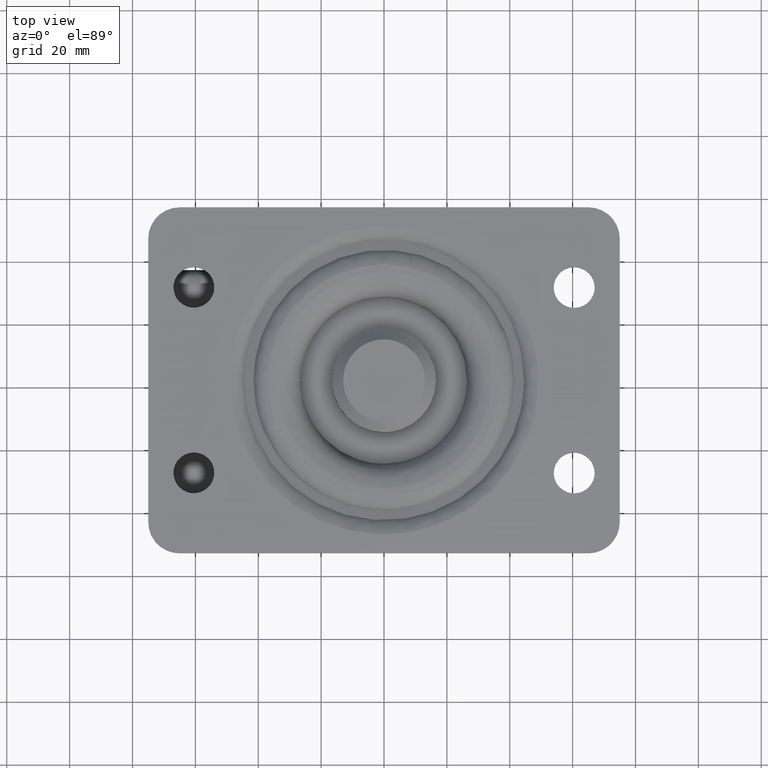
[diagram: clean part render]
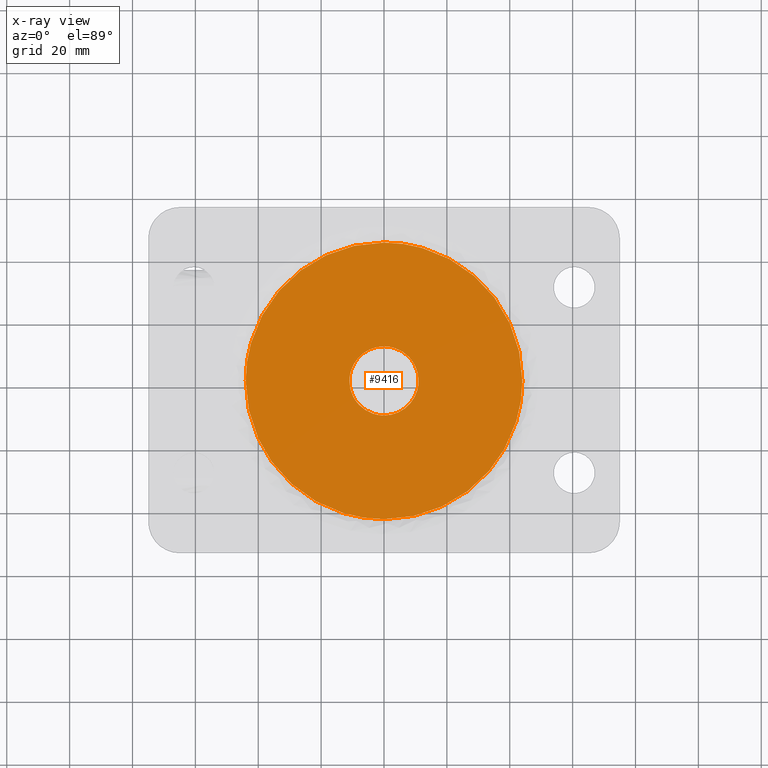
[diagram: x-ray — body ghosted, one internal face saturated and labeled with its STEP entity id]
A machine part, top view, then the same camera in x-ray: the body is ghosted and one INTERNAL B-rep face — a face not visible from any outside direction — is saturated and labeled: STEP entity #9416.
In plain terms, the highlighted face is a freeform B-spline surface patch.
Its self-contained STEP definition (entity closure, byte-faithful):
#9091=CARTESIAN_POINT('',(-44.000000006474920,-3.540981E-015,-14.300000000000001));
#9092=VERTEX_POINT('',#9091);
#9105=CARTESIAN_POINT('',(-0.000003288799408,43.999999999999879,-14.300000000000001));
#9106=VERTEX_POINT('',#9105);
#9107=CARTESIAN_POINT('',(-0.000003288799408,43.999999999999879,-14.300000000000001));
#9108=CARTESIAN_POINT('',(-2.879818366784983,44.000351013822161,-14.300000000000020));
#9109=CARTESIAN_POINT('',(-7.649328807625619,43.530022880303640,-14.299999999999971));
#9110=CARTESIAN_POINT('',(-13.487107773322890,41.972027704614248,-14.300000000000059));
#9111=CARTESIAN_POINT('',(-17.941275789975091,40.253845468189802,-14.299999999999930));
#9112=CARTESIAN_POINT('',(-22.288704957403908,38.065627396264532,-14.300000000000161));
#9113=CARTESIAN_POINT('',(-26.938544867940749,34.958720271804779,-14.300000000000029));
#9114=CARTESIAN_POINT('',(-31.263071502610220,31.134763783527731,-14.299999999999701));
#9115=CARTESIAN_POINT('',(-34.940274503055448,26.924360374566220,-14.300000000000210));
#9116=CARTESIAN_POINT('',(-38.327296430906543,21.922229891631570,-14.299999999999971));
#9117=CARTESIAN_POINT('',(-40.925027349809817,16.558189556523828,-14.300000000000191));
#9118=CARTESIAN_POINT('',(-42.629117777103552,11.235197813998910,-14.299999999999910));
#9119=CARTESIAN_POINT('',(-43.716334771194802,5.939529568551540,-14.300000000000050));
#9120=CARTESIAN_POINT('',(-44.000151555222629,2.249848368880807,-14.299999999999979));
#9121=CARTESIAN_POINT('',(-44.000000006474920,-3.540981E-015,-14.300000000000001));
#9122=B_SPLINE_CURVE_WITH_KNOTS('',3,(#9107,#9108,#9109,#9110,#9111,#9112,#9113,#9114,#9115,#9116,#9117,#9118,#9119,#9120,#9121),.UNSPECIFIED.,.F.,.U.,(4,1,1,1,1,1,1,1,1,1,1,1,4),(0.000000080761367,8.639379993254337,14.308982956856941,18.088730011883950,22.948412067883421,28.887981037103941,34.827504618990467,40.227169867078487,45.626788852177462,52.916283563841603,58.045928613464362,62.365621627352262,69.115144953306867),.UNSPECIFIED.);
#9123=EDGE_CURVE('',#9106,#9092,#9122,.T.);
#9125=CARTESIAN_POINT('',(44.000000006474913,1.541728E-015,-14.300000000000001));
#9126=VERTEX_POINT('',#9125);
#9127=CARTESIAN_POINT('',(44.000000006474913,1.541728E-015,-14.300000000000001));
#9128=CARTESIAN_POINT('',(44.000406653466392,2.879826673292151,-14.300000000000001));
#9129=CARTESIAN_POINT('',(43.565441640034940,7.289337304598183,-14.300000000000010));
#9130=CARTESIAN_POINT('',(42.080326166805037,13.141632755913291,-14.300000000000020));
#9131=CARTESIAN_POINT('',(40.541569967309762,17.281314259673710,-14.299999999999899));
#9132=CARTESIAN_POINT('',(38.487087978484993,21.490712016686341,-14.300000000000050));
#9133=CARTESIAN_POINT('',(35.859853719377448,25.696561200241529,-14.299999999999971));
#9134=CARTESIAN_POINT('',(32.212119775735950,30.169246060561111,-14.300000000000070));
#9135=CARTESIAN_POINT('',(28.257545734327842,33.865507338010651,-14.300000000000059));
#9136=CARTESIAN_POINT('',(23.895610002559099,37.059182666323188,-14.299999999999860));
#9137=CARTESIAN_POINT('',(19.195952135444742,39.740658291535809,-14.300000000000360));
#9138=CARTESIAN_POINT('',(13.339449201616860,42.103703533738518,-14.299999999999891));
#9139=CARTESIAN_POINT('',(6.839477329071829,43.647257050551559,-14.300000000000059));
#9140=CARTESIAN_POINT('',(2.249839491382803,44.000122834062410,-14.300000000000001));
#9141=CARTESIAN_POINT('',(-0.000003288799408,43.999999999999879,-14.300000000000001));
#9142=B_SPLINE_CURVE_WITH_KNOTS('',3,(#9127,#9128,#9129,#9130,#9131,#9132,#9133,#9134,#9135,#9136,#9137,#9138,#9139,#9140,#9141),.UNSPECIFIED.,.F.,.U.,(4,1,1,1,1,1,1,1,1,1,1,1,4),(0.000000080474123,8.639380456203597,13.229055354062391,18.088730981881049,21.868484835617121,27.268127180695739,32.937747772707432,39.147243824423512,43.466945728921132,49.136539575548987,55.346129289589364,62.365624971714020,69.115148660556144),.UNSPECIFIED.);
#9143=EDGE_CURVE('',#9126,#9106,#9142,.T.);
#9282=CARTESIAN_POINT('',(0.000003288800235,-43.999999999999879,-14.300000000000001));
#9283=VERTEX_POINT('',#9282);
#9284=CARTESIAN_POINT('',(0.000003288800235,-43.999999999999879,-14.300000000000001));
#9285=CARTESIAN_POINT('',(3.239831863843837,-44.000612205704698,-14.300000000000070));
#9286=CARTESIAN_POINT('',(8.009205279478703,-43.470771451956558,-14.299999999999930));
#9287=CARTESIAN_POINT('',(13.823256783981710,-41.842294097107541,-14.300000000000081));
#9288=CARTESIAN_POINT('',(18.277473281959342,-40.124235646599537,-14.299999999999910));
#9289=CARTESIAN_POINT('',(22.600912307992040,-37.881055685636539,-14.300000000000090));
#9290=CARTESIAN_POINT('',(27.208806080372320,-34.719687930817607,-14.299999999999940));
#9291=CARTESIAN_POINT('',(31.533403218954309,-30.895809156363640,-14.299999999999940));
#9292=CARTESIAN_POINT('',(35.161653233851908,-26.637073081755808,-14.300000000000489));
#9293=CARTESIAN_POINT('',(38.087829409494482,-22.198849788436629,-14.299999999999160));
#9294=CARTESIAN_POINT('',(40.481594860631667,-17.550499051854260,-14.300000000000781));
#9295=CARTESIAN_POINT('',(42.259498096000293,-12.629173477042331,-14.299999999999629));
#9296=CARTESIAN_POINT('',(43.638549087084833,-6.659429129815668,-14.300000000000210));
#9297=CARTESIAN_POINT('',(44.000267763159883,-2.609836704504774,-14.299999999999921));
#9298=CARTESIAN_POINT('',(44.000000006474913,1.541728E-015,-14.300000000000001));
#9299=B_SPLINE_CURVE_WITH_KNOTS('',3,(#9284,#9285,#9286,#9287,#9288,#9289,#9290,#9291,#9292,#9293,#9294,#9295,#9296,#9297,#9298),.UNSPECIFIED.,.F.,.U.,(4,1,1,1,1,1,1,1,1,1,1,1,4),(0.000000080772068,9.719305975387577,14.308982956865220,18.088730011891510,24.028340396256379,28.887981037108158,34.827504618992748,41.307095838812117,45.626788852177583,50.756433900801902,56.966005478894559,61.285697308204057,69.115144953306370),.UNSPECIFIED.);
#9300=EDGE_CURVE('',#9283,#9126,#9299,.T.);
#9302=CARTESIAN_POINT('',(-44.000000006474920,-3.540981E-015,-14.300000000000001));
#9303=CARTESIAN_POINT('',(-44.000649621536233,-3.239841517773141,-14.300000000000010));
#9304=CARTESIAN_POINT('',(-43.470658998230782,-8.009164384500634,-14.300000000000001));
#9305=CARTESIAN_POINT('',(-41.502241173955547,-15.038212835612439,-14.300000000000001));
#9306=CARTESIAN_POINT('',(-38.795212029314413,-21.248288076822671,-14.299999999999960));
#9307=CARTESIAN_POINT('',(-34.577517452667472,-27.560414887137281,-14.300000000000150));
#9308=CARTESIAN_POINT('',(-30.095249559337208,-32.268000055459410,-14.299999999999720));
#9309=CARTESIAN_POINT('',(-26.035208571827209,-35.558350441321672,-14.300000000000409));
#9310=CARTESIAN_POINT('',(-22.198859822152929,-38.087843900508290,-14.299999999999720));
#9311=CARTESIAN_POINT('',(-17.871060933982520,-40.316478030564760,-14.300000000000029));
#9312=CARTESIAN_POINT('',(-13.313382092095409,-42.026484569696748,-14.300000000000191));
#9313=CARTESIAN_POINT('',(-7.379316856052752,-43.551769946307473,-14.299999999999830));
#9314=CARTESIAN_POINT('',(-2.969825886408046,-44.000454343108913,-14.300000000000081));
#9315=CARTESIAN_POINT('',(0.000003288800235,-43.999999999999879,-14.300000000000001));
#9316=B_SPLINE_CURVE_WITH_KNOTS('',3,(#9302,#9303,#9304,#9305,#9306,#9307,#9308,#9309,#9310,#9311,#9312,#9313,#9314,#9315),.UNSPECIFIED.,.F.,.U.,(4,1,1,1,1,1,1,1,1,1,1,4),(0.000000080458818,9.719306496252905,14.308983724092760,21.868484835608019,29.967901333758341,36.987379690353158,41.307098052503989,45.626791298464241,50.756436623426012,55.886084627588303,60.205777295489632,69.115148660556585),.UNSPECIFIED.);
#9317=EDGE_CURVE('',#9092,#9283,#9316,.T.);
#9322=CARTESIAN_POINT('',(48.395599836560663,-48.395599829438787,-14.300000000000001));
#9323=CARTESIAN_POINT('',(-48.395602196904619,-48.395599829438787,-14.300000000000001));
#9324=CARTESIAN_POINT('',(48.395599836560663,48.395602189782721,-14.300000000000001));
#9325=CARTESIAN_POINT('',(-48.395602196904619,48.395602189782721,-14.300000000000001));
#9326=B_SPLINE_SURFACE_WITH_KNOTS('',1,1,((#9322,#9324),(#9323,#9325)),.UNSPECIFIED.,.F.,.F.,.U.,(2,2),(2,2),(0.0,96.791202033465282),(0.0,96.791202019221515),.UNSPECIFIED.);
#9327=ORIENTED_EDGE('',*,*,#9317,.T.);
#9328=ORIENTED_EDGE('',*,*,#9300,.T.);
#9329=ORIENTED_EDGE('',*,*,#9143,.T.);
#9330=ORIENTED_EDGE('',*,*,#9123,.T.);
#9331=EDGE_LOOP('',(#9327,#9328,#9329,#9330));
#9332=FACE_OUTER_BOUND('',#9331,.T.);
#9333=CARTESIAN_POINT('',(-0.000002181032705,10.999999999999780,-14.300000000000001));
#9334=VERTEX_POINT('',#9333);
#9335=CARTESIAN_POINT('',(-11.0,0.0,-14.300000000000001));
#9336=VERTEX_POINT('',#9335);
#9337=CARTESIAN_POINT('',(-0.000002181032705,10.999999999999780,-14.300000000000001));
#9338=CARTESIAN_POINT('',(-0.719957475791793,11.000092680689249,-14.300000000000029));
#9339=CARTESIAN_POINT('',(-1.889827012427780,10.884709451798241,-14.299999999999990));
#9340=CARTESIAN_POINT('',(-3.546345452616853,10.448065792436170,-14.300000000000010));
#9341=CARTESIAN_POINT('',(-5.297229879918416,9.723073543932339,-14.300000000000020));
#9342=CARTESIAN_POINT('',(-7.106599515855026,8.514092268918073,-14.299999999999949));
#9343=CARTESIAN_POINT('',(-8.665347384079364,6.876648405055732,-14.300000000000111));
#9344=CARTESIAN_POINT('',(-9.699703380725277,5.286660224919473,-14.299999999999869));
#9345=CARTESIAN_POINT('',(-10.431085372726860,3.636704249855895,-14.300000000000020));
#9346=CARTESIAN_POINT('',(-10.891489594561730,1.889840988534493,-14.300000000000020));
#9347=CARTESIAN_POINT('',(-11.000052231432560,0.629944251257710,-14.299999999999990));
#9348=CARTESIAN_POINT('',(-11.0,0.0,-14.300000000000001));
#9349=B_SPLINE_CURVE_WITH_KNOTS('',3,(#9337,#9338,#9339,#9340,#9341,#9342,#9343,#9344,#9345,#9346,#9347,#9348),.UNSPECIFIED.,.F.,.U.,(4,1,1,1,1,1,1,1,1,4),(0.000000164299916,2.159854604995170,3.509756229234437,5.129677513508110,7.829542438329812,9.989297319143152,11.879215936116170,13.499116075855220,15.389029997266650,17.278866782358680),.UNSPECIFIED.);
#9350=EDGE_CURVE('',#9334,#9336,#9349,.T.);
#9351=ORIENTED_EDGE('',*,*,#9350,.F.);
#9352=CARTESIAN_POINT('',(7.979117610257931,7.571900037799713,-14.300000000000001));
#9353=VERTEX_POINT('',#9352);
#9354=CARTESIAN_POINT('',(7.979117610257931,7.571900037799713,-14.300000000000001));
#9355=CARTESIAN_POINT('',(7.531060438855378,8.044109580517311,-14.300000000000020));
#9356=CARTESIAN_POINT('',(6.445800239755300,9.001353960524810,-14.299999999999990));
#9357=CARTESIAN_POINT('',(4.423918266818317,10.176095116222459,-14.300000000000040));
#9358=CARTESIAN_POINT('',(2.185348704248708,10.863563049203250,-14.299999999999930));
#9359=CARTESIAN_POINT('',(0.650946778365873,11.000019797641500,-14.300000000000081));
#9360=CARTESIAN_POINT('',(-0.000002181032705,10.999999999999780,-14.300000000000001));
#9361=B_SPLINE_CURVE_WITH_KNOTS('',3,(#9354,#9355,#9356,#9357,#9358,#9359,#9360),.UNSPECIFIED.,.F.,.U.,(4,1,1,1,4),(0.000000044744699,1.952872124159809,4.324242835285600,6.974548706070789,8.927420785487486),.UNSPECIFIED.);
#9362=EDGE_CURVE('',#9353,#9334,#9361,.T.);
#9363=ORIENTED_EDGE('',*,*,#9362,.F.);
#9364=CARTESIAN_POINT('',(11.0,0.0,-14.300000000000001));
#9365=VERTEX_POINT('',#9364);
#9366=CARTESIAN_POINT('',(11.0,0.0,-14.300000000000001));
#9367=CARTESIAN_POINT('',(11.000026697898020,0.565457261730948,-14.300000000000001));
#9368=CARTESIAN_POINT('',(10.905919647822270,1.783373010498988,-14.299999999999990));
#9369=CARTESIAN_POINT('',(10.474788046793909,3.521115733779161,-14.300000000000020));
#9370=CARTESIAN_POINT('',(9.589461497576782,5.562372202768264,-14.300000000000001));
#9371=CARTESIAN_POINT('',(8.668052794928515,6.846417897825381,-14.300000000000010));
#9372=CARTESIAN_POINT('',(7.979117610257931,7.571900037799713,-14.300000000000001));
#9373=B_SPLINE_CURVE_WITH_KNOTS('',3,(#9366,#9367,#9368,#9369,#9370,#9371,#9372),.UNSPECIFIED.,.F.,.U.,(4,1,1,1,4),(0.000000043705352,1.696382341701640,3.653770191521033,5.350131661220168,8.351449340769896),.UNSPECIFIED.);
#9374=EDGE_CURVE('',#9365,#9353,#9373,.T.);
#9375=ORIENTED_EDGE('',*,*,#9374,.F.);
#9376=CARTESIAN_POINT('',(0.000002181032705,-10.999999999999780,-14.300000000000001));
#9377=VERTEX_POINT('',#9376);
#9378=CARTESIAN_POINT('',(0.000002181032705,-10.999999999999780,-14.300000000000001));
#9379=CARTESIAN_POINT('',(0.719951514295585,-11.000070542348171,-14.300000000000010));
#9380=CARTESIAN_POINT('',(2.204830450047839,-10.853756502539699,-14.300000000000010));
#9381=CARTESIAN_POINT('',(4.235819411516155,-10.224045900040069,-14.299999999999979));
#9382=CARTESIAN_POINT('',(6.107866446955907,-9.223385475960440,-14.300000000000111));
#9383=CARTESIAN_POINT('',(7.484529619040474,-8.121527051960729,-14.299999999999880));
#9384=CARTESIAN_POINT('',(8.855734578947784,-6.627358359188509,-14.300000000000130));
#9385=CARTESIAN_POINT('',(9.898626853542369,-4.980387723694789,-14.299999999999811));
#9386=CARTESIAN_POINT('',(10.779749423402810,-2.609635267866027,-14.300000000000150));
#9387=CARTESIAN_POINT('',(11.000361543710209,-0.989961635955261,-14.299999999999949));
#9388=CARTESIAN_POINT('',(11.0,0.0,-14.300000000000001));
#9389=B_SPLINE_CURVE_WITH_KNOTS('',3,(#9378,#9379,#9380,#9381,#9382,#9383,#9384,#9385,#9386,#9387,#9388),.UNSPECIFIED.,.F.,.U.,(4,1,1,1,1,1,1,1,4),(0.000000164299177,2.159854604994434,4.454709896352625,6.344597653542387,8.504490344097244,9.719342795102232,12.419184173816269,14.309084438954329,17.278866782358680),.UNSPECIFIED.);
#9390=EDGE_CURVE('',#9377,#9365,#9389,.T.);
#9391=ORIENTED_EDGE('',*,*,#9390,.F.);
#9392=CARTESIAN_POINT('',(-7.979117610257931,-7.571900037799713,-14.300000000000001));
#9393=VERTEX_POINT('',#9392);
#9394=CARTESIAN_POINT('',(-7.979117610257931,-7.571900037799713,-14.300000000000001));
#9395=CARTESIAN_POINT('',(-7.403106760046962,-8.179095884495231,-14.300000000000029));
#9396=CARTESIAN_POINT('',(-6.075745805044271,-9.291152056434635,-14.299999999999949));
#9397=CARTESIAN_POINT('',(-4.148074937514859,-10.253115584795740,-14.300000000000059));
#9398=CARTESIAN_POINT('',(-2.092272024993900,-10.855965789983930,-14.299999999999910));
#9399=CARTESIAN_POINT('',(-0.836959804746737,-11.000187671754230,-14.300000000000070));
#9400=CARTESIAN_POINT('',(0.000002181032705,-10.999999999999780,-14.300000000000001));
#9401=B_SPLINE_CURVE_WITH_KNOTS('',3,(#9394,#9395,#9396,#9397,#9398,#9399,#9400),.UNSPECIFIED.,.F.,.U.,(4,1,1,1,4),(0.000000044744064,2.510838335699519,5.161157589668544,6.416582494531690,8.927420785487490),.UNSPECIFIED.);
#9402=EDGE_CURVE('',#9393,#9377,#9401,.T.);
#9403=ORIENTED_EDGE('',*,*,#9402,.F.);
#9404=CARTESIAN_POINT('',(-11.0,0.0,-14.300000000000001));
#9405=CARTESIAN_POINT('',(-11.000355740072269,-1.000486847021368,-14.300000000000001));
#9406=CARTESIAN_POINT('',(-10.814749231273501,-2.348684067275819,-14.300000000000020));
#9407=CARTESIAN_POINT('',(-10.156627209382361,-4.332621067843686,-14.300000000000050));
#9408=CARTESIAN_POINT('',(-9.347105018456984,-5.931829110159563,-14.299999999999930));
#9409=CARTESIAN_POINT('',(-8.458235190995707,-7.067124815020643,-14.300000000000001));
#9410=CARTESIAN_POINT('',(-7.979117610257931,-7.571900037799713,-14.300000000000001));
#9411=B_SPLINE_CURVE_WITH_KNOTS('',3,(#9404,#9405,#9406,#9407,#9408,#9409,#9410),.UNSPECIFIED.,.F.,.U.,(4,1,1,1,4),(0.000000043704814,3.001317723288875,4.045260197751667,6.263587016520487,8.351449340769893),.UNSPECIFIED.);
#9412=EDGE_CURVE('',#9336,#9393,#9411,.T.);
#9413=ORIENTED_EDGE('',*,*,#9412,.F.);
#9414=EDGE_LOOP('',(#9351,#9363,#9375,#9391,#9403,#9413));
#9415=FACE_BOUND('',#9414,.T.);
#9416=ADVANCED_FACE('',(#9332,#9415),#9326,.F.);